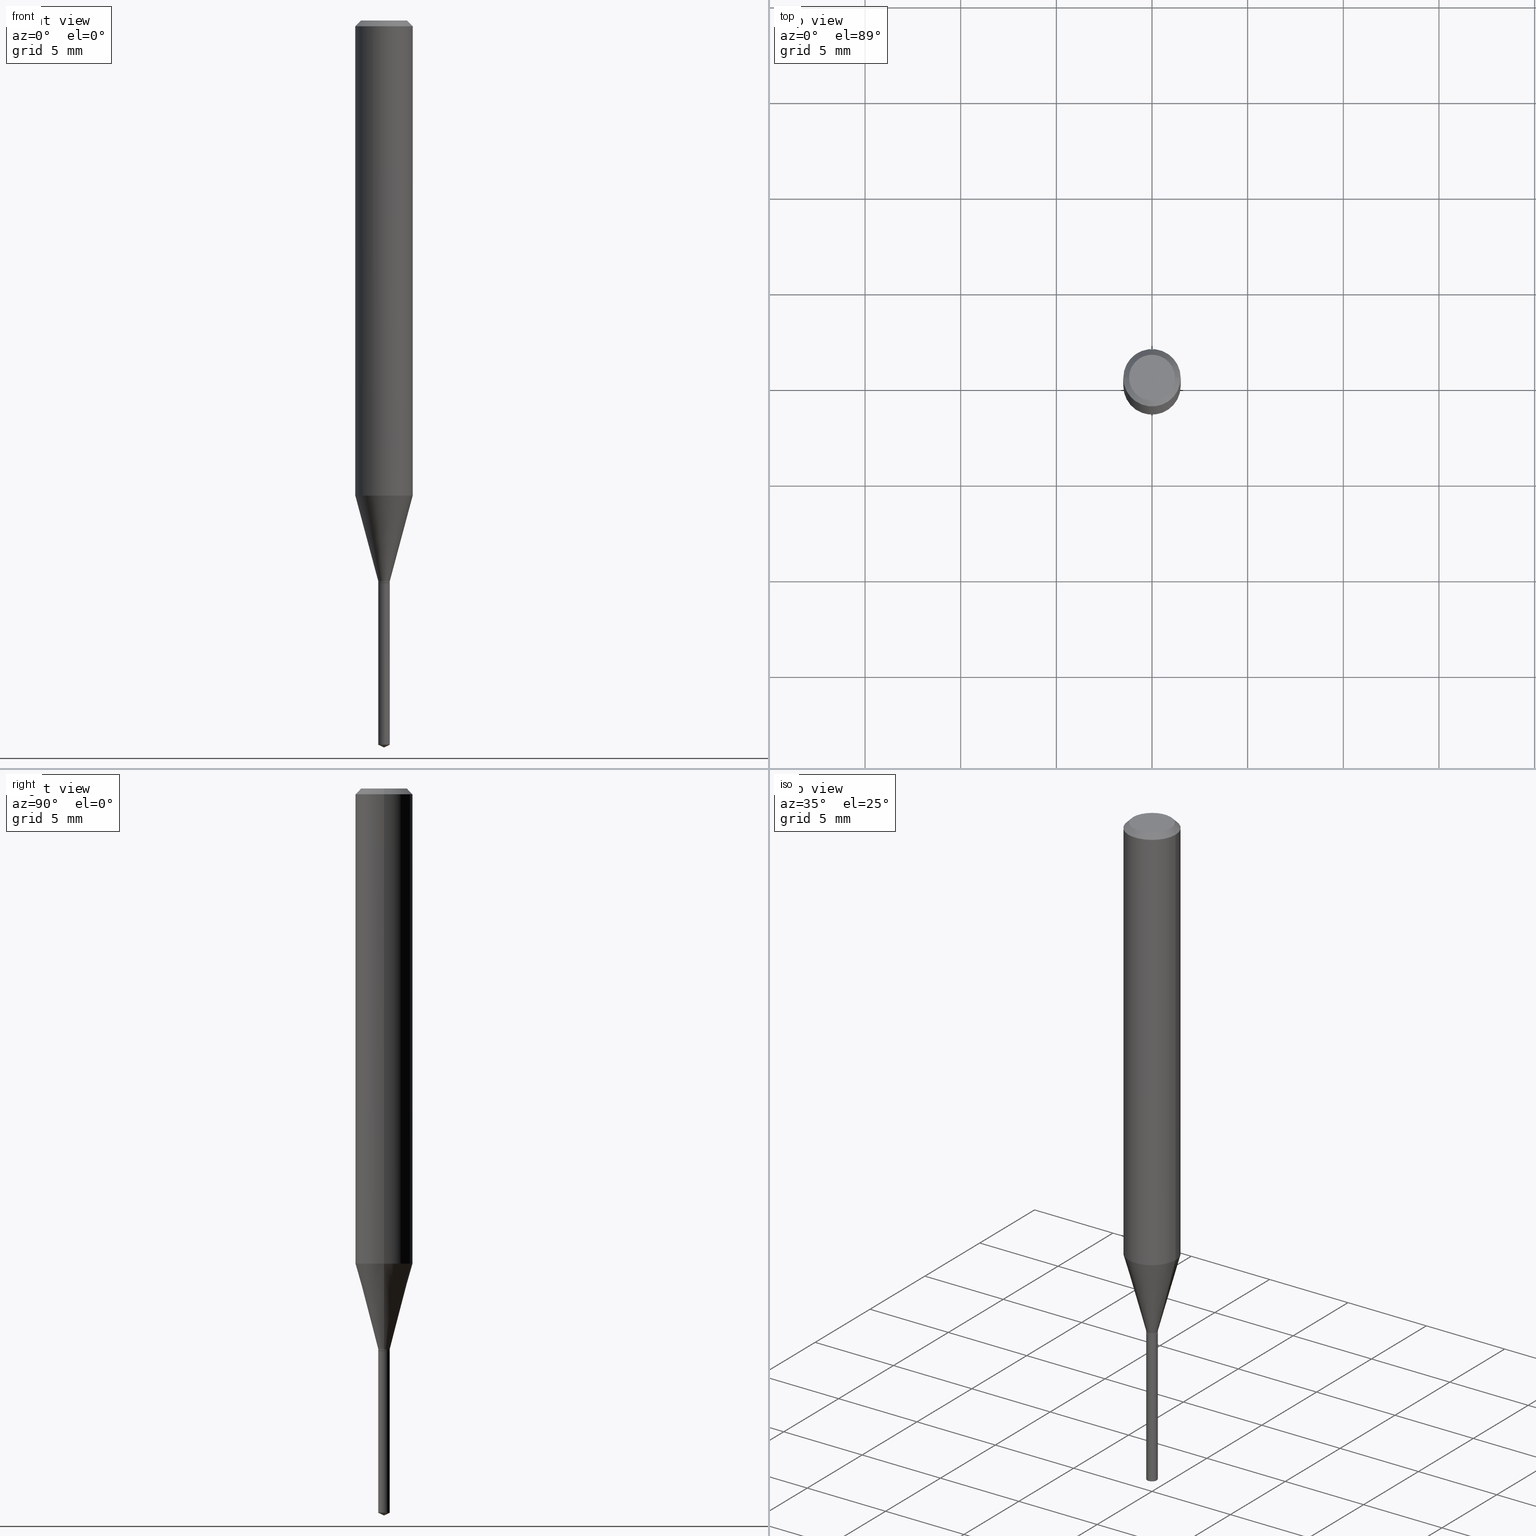
[diagram: canonical four-view strip — front | top / right | iso, engineering-drawing reading convention]
A machine part, canonical four-view strip (front | top / right | iso — engineering-drawing reading convention). The complete STEP part file that produces these views, byte-faithful:
ISO-10303-21;
HEADER;
FILE_DESCRIPTION (( 'STEP AP203' ),
    '1' );
FILE_NAME ('07779.STEP',
    '2024-04-24T02:51:17',
    ( '' ),
    ( '' ),
    'SwSTEP 2.0',
    'SolidWorks 2023',
    '' );
FILE_SCHEMA (( 'CONFIG_CONTROL_DESIGN' ));
ENDSEC;

DATA;
#1 = CYLINDRICAL_SURFACE ( 'NONE', #181, 0.05905000000000006771 ) ;
#2 = ORIENTED_EDGE ( 'NONE', *, *, #268, .F. ) ;
#3 = CLOSED_SHELL ( 'NONE', ( #359, #219, #134, #178, #482 ) ) ;
#4 = CARTESIAN_POINT ( 'NONE',  ( 0.05904999999999999832, -4.463468013801466955E-16, -0.01181000000000006871 ) ) ;
#5 = ORIENTED_EDGE ( 'NONE', *, *, #231, .T. ) ;
#6 = CARTESIAN_POINT ( 'NONE',  ( -0.01180000000000000146, -3.950562644213562832E-15, -1.156999999999999806 ) ) ;
#7 = DIRECTION ( 'NONE',  ( 2.445468806185136597E-29, -3.491481338843145583E-15, -1.000000000000000000 ) ) ;
#8 = EDGE_LOOP ( 'NONE', ( #2, #287, #109, #311 ) ) ;
#9 = ORIENTED_EDGE ( 'NONE', *, *, #371, .T. ) ;
#10 = DIRECTION ( 'NONE',  ( 1.000000000000000000, -6.982962677686254878E-15, 0.000000000000000000 ) ) ;
#11 = ORIENTED_EDGE ( 'NONE', *, *, #15, .T. ) ;
#12 =( NAMED_UNIT ( * ) PLANE_ANGLE_UNIT ( ) SI_UNIT ( $, .RADIAN. ) );
#13 = DIRECTION ( 'NONE',  ( 1.000000000000000000, -6.982962677686267499E-15, 4.876176775795935793E-29 ) ) ;
#14 = LINE ( 'NONE', #55, #274 ) ;
#15 = EDGE_CURVE ( 'NONE', #265, #298, #51, .T. ) ;
#16 = ORIENTED_EDGE ( 'NONE', *, *, #422, .T. ) ;
#17 = DIRECTION ( 'NONE',  ( -6.982962677686265133E-15, -1.000000000000000000, 0.000000000000000000 ) ) ;
#18 = CIRCLE ( 'NONE', #379, 0.01180000000000000146 ) ;
#19 = AXIS2_PLACEMENT_3D ( 'NONE', #153, #116, #10 ) ;
#20 = APPLICATION_PROTOCOL_DEFINITION ( 'international standard', 'config_control_design', 1994, #318 ) ;
#21 = ORIENTED_EDGE ( 'NONE', *, *, #144, .T. ) ;
#22 = UNCERTAINTY_MEASURE_WITH_UNIT (LENGTH_MEASURE( 1.000000000000000082E-05 ), #126, 'distance_accuracy_value', 'NONE');
#23 = PERSON_AND_ORGANIZATION_ROLE ( 'creator' ) ;
#24 = CARTESIAN_POINT ( 'NONE',  ( 0.000000000000000000, 0.000000000000000000, 0.000000000000000000 ) ) ;
#25 = FACE_OUTER_BOUND ( 'NONE', #356, .T. ) ;
#26 = CIRCLE ( 'NONE', #462, 0.01180000000000000146 ) ;
#27 = ORGANIZATION ( 'UNSPECIFIED', 'UNSPECIFIED', '' ) ;
#28 = PERSON_AND_ORGANIZATION ( #216, #27 ) ;
#29 = DIRECTION ( 'NONE',  ( -6.982962677686266711E-15, -1.000000000000000000, 3.520397390770449137E-15 ) ) ;
#30 = ORIENTED_EDGE ( 'NONE', *, *, #168, .T. ) ;
#31 = DIRECTION ( 'NONE',  ( -2.445468806185136597E-29, 3.491481338843145583E-15, 1.000000000000000000 ) ) ;
#32 = EDGE_LOOP ( 'NONE', ( #455, #136, #418, #248 ) ) ;
#33 = DIRECTION ( 'NONE',  ( -2.445457056059012515E-29, 3.491498165692530705E-15, 1.000000000000000000 ) ) ;
#34 = AXIS2_PLACEMENT_3D ( 'NONE', #451, #217, #220 ) ;
#35 = VECTOR ( 'NONE', #230, 39.37007874015748143 ) ;
#36 = PERSON_AND_ORGANIZATION ( #216, #27 ) ;
#37 = ADVANCED_FACE ( 'NONE', ( #393 ), #273, .T. ) ;
#38 = DIRECTION ( 'NONE',  ( -2.445468806185136597E-29, 3.491481338843145583E-15, 1.000000000000000000 ) ) ;
#39 = CARTESIAN_POINT ( 'NONE',  ( 0.000000000000000000, 0.000000000000000000, 0.000000000000000000 ) ) ;
#40 = DIRECTION ( 'NONE',  ( -1.000000000000000000, 6.982962677686266711E-15, 0.000000000000000000 ) ) ;
#41 = EDGE_LOOP ( 'NONE', ( #478, #291, #190, #244 ) ) ;
#42 = CONICAL_SURFACE ( 'NONE', #446, 84.42940631927444883, 1.134464013796316451 ) ;
#43 = CONICAL_SURFACE ( 'NONE', #166, 0.01180000000000000146, 0.2617993877991500740 ) ;
#44 = CARTESIAN_POINT ( 'NONE',  ( 0.04724000000000000421, -3.852183633974369345E-16, -3.380025165621689721E-19 ) ) ;
#45 = ORIENTED_EDGE ( 'NONE', *, *, #271, .F. ) ;
#46 = CARTESIAN_POINT ( 'NONE',  ( 2.830630143159295633E-29, -4.041389649710940900E-15, -1.157499999999999973 ) ) ;
#47 = ORIENTED_EDGE ( 'NONE', *, *, #375, .T. ) ;
#48 = EDGE_CURVE ( 'NONE', #260, #80, #315, .T. ) ;
#49 = LINE ( 'NONE', #154, #213 ) ;
#50 = CARTESIAN_POINT ( 'NONE',  ( 2.830630143159295633E-29, -4.041389649710940900E-15, -1.157499999999999973 ) ) ;
#51 = CIRCLE ( 'NONE', #149, 0.04724000000000000421 ) ;
#52 = CC_DESIGN_APPROVAL ( #341, ( #88 ) ) ;
#53 = LINE ( 'NONE', #434, #397 ) ;
#54 = DIRECTION ( 'NONE',  ( 1.000000000000000000, -6.982962677686258033E-15, 0.000000000000000000 ) ) ;
#55 = CARTESIAN_POINT ( 'NONE',  ( 8.384404281972012037E-17, 0.01179999999999595782, -1.157499999999999973 ) ) ;
#56 = DIRECTION ( 'NONE',  ( 2.445457056059012235E-29, -3.491498165692530705E-15, -1.000000000000000000 ) ) ;
#57 = ORIENTED_EDGE ( 'NONE', *, *, #363, .T. ) ;
#58 = AXIS2_PLACEMENT_3D ( 'NONE', #199, #353, #13 ) ;
#59 = CARTESIAN_POINT ( 'NONE',  ( 3.658675741637279389E-29, -5.223591451536267840E-15, -1.496099999999999985 ) ) ;
#60 = VECTOR ( 'NONE', #79, 39.37007874015748143 ) ;
#61 = APPROVAL_DATE_TIME ( #169, #305 ) ;
#62 = DIRECTION ( 'NONE',  ( -2.445457056059012515E-29, 3.491498165692530705E-15, 1.000000000000000000 ) ) ;
#63 = PERSON_AND_ORGANIZATION_ROLE ( 'design_supplier' ) ;
#64 = DIRECTION ( 'NONE',  ( 1.000000000000000000, -6.982962677686258033E-15, 0.000000000000000000 ) ) ;
#65 = CARTESIAN_POINT ( 'NONE',  ( -0.05904999999999999832, 3.711095515056362547E-16, -0.01181000000000006871 ) ) ;
#66 = CONICAL_SURFACE ( 'NONE', #297, 0.01130000000000000102, 0.7853981633974119747 ) ;
#67 = COORDINATED_UNIVERSAL_TIME_OFFSET ( 5, 0, .BEHIND. ) ;
#68 = CARTESIAN_POINT ( 'NONE',  ( 2.829407408756202832E-29, -4.039643909041518608E-15, -1.156999999999999806 ) ) ;
#69 = EDGE_CURVE ( 'NONE', #80, #203, #14, .T. ) ;
#70 = CYLINDRICAL_SURFACE ( 'NONE', #357, 0.01180000000000000146 ) ;
#71 = FACE_OUTER_BOUND ( 'NONE', #8, .T. ) ;
#72 = LOCAL_TIME ( 22, 51, 17.00000000000000000, #372 ) ;
#73 = LINE ( 'NONE', #460, #135 ) ;
#74 = DIRECTION ( 'NONE',  ( -2.445468806185136597E-29, 3.491481338843145583E-15, 1.000000000000000000 ) ) ;
#75 = DIRECTION ( 'NONE',  ( -6.982962677686265133E-15, -1.000000000000000000, 0.000000000000000000 ) ) ;
#76 = EDGE_CURVE ( 'NONE', #365, #388, #338, .T. ) ;
#77 = VERTEX_POINT ( 'NONE', #172 ) ;
#78 = AXIS2_PLACEMENT_3D ( 'NONE', #68, #31, #143 ) ;
#79 = DIRECTION ( 'NONE',  ( -2.445457056059012515E-29, 3.491498165692530705E-15, 1.000000000000000000 ) ) ;
#80 = VERTEX_POINT ( 'NONE', #246 ) ;
#81 = EDGE_CURVE ( 'NONE', #346, #80, #133, .T. ) ;
#82 = CARTESIAN_POINT ( 'NONE',  ( -0.01130000000000000102, -3.958449093395937755E-15, -1.157499999999999973 ) ) ;
#83 = ADVANCED_FACE ( 'NONE', ( #314 ), #241, .F. ) ;
#84 = PERSON_AND_ORGANIZATION ( #216, #27 ) ;
#85 = EDGE_CURVE ( 'NONE', #417, #388, #89, .T. ) ;
#86 = DIRECTION ( 'NONE',  ( 0.2588190451025213501, 1.565188264969621968E-15, 0.9659258262890682012 ) ) ;
#87 = AXIS2_PLACEMENT_3D ( 'NONE', #285, #448, #333 ) ;
#88 = PRODUCT_DEFINITION_FORMATION_WITH_SPECIFIED_SOURCE ( 'ANY', '', #323, .NOT_KNOWN. ) ;
#89 = LINE ( 'NONE', #280, #107 ) ;
#90 = FACE_OUTER_BOUND ( 'NONE', #227, .T. ) ;
#91 = PERSON_AND_ORGANIZATION ( #216, #27 ) ;
#92 = DIRECTION ( 'NONE',  ( -2.445468806185136877E-29, 3.491481338843145188E-15, 1.000000000000000000 ) ) ;
#93 = APPROVAL_ROLE ( '' ) ;
#94 = AXIS2_PLACEMENT_3D ( 'NONE', #409, #185, #177 ) ;
#95 = ORIENTED_EDGE ( 'NONE', *, *, #281, .F. ) ;
#96 = APPROVAL_ROLE ( '' ) ;
#97 = DIRECTION ( 'NONE',  ( -2.445457056059012515E-29, 3.491498165692530705E-15, 1.000000000000000000 ) ) ;
#98 = CALENDAR_DATE ( 2024, 23, 4 ) ;
#99 = CARTESIAN_POINT ( 'NONE',  ( 8.265746106709734507E-48, -1.180129479067563789E-33, -3.380025165646692144E-19 ) ) ;
#100 = ORIENTED_EDGE ( 'NONE', *, *, #105, .T. ) ;
#101 = CARTESIAN_POINT ( 'NONE',  ( -0.01130000000000000102, -3.961098320570048956E-15, -1.157499999999999973 ) ) ;
#102 = AXIS2_PLACEMENT_3D ( 'NONE', #24, #131, #164 ) ;
#103 = DIRECTION ( 'NONE',  ( -6.982962677686265133E-15, -1.000000000000000000, 0.000000000000000000 ) ) ;
#104 = DIRECTION ( 'NONE',  ( 1.000000000000000000, -6.982962677686258033E-15, 0.000000000000000000 ) ) ;
#105 = EDGE_CURVE ( 'NONE', #155, #252, #53, .T. ) ;
#106 = CARTESIAN_POINT ( 'NONE',  ( 0.01180000000000000146, -4.122042868638216732E-15, -1.156999999999999806 ) ) ;
#107 = VECTOR ( 'NONE', #236, 39.37007874015748143 ) ;
#108 = CIRCLE ( 'NONE', #174, 0.01180000000000000146 ) ;
#109 = ORIENTED_EDGE ( 'NONE', *, *, #449, .T. ) ;
#110 = FACE_OUTER_BOUND ( 'NONE', #267, .T. ) ;
#111 = ORIENTED_EDGE ( 'NONE', *, *, #425, .T. ) ;
#112 = EDGE_CURVE ( 'NONE', #309, #214, #125, .T. ) ;
#113 = LINE ( 'NONE', #119, #332 ) ;
#114 = EDGE_LOOP ( 'NONE', ( #303, #420, #467, #435 ) ) ;
#115 = ORIENTED_EDGE ( 'NONE', *, *, #194, .T. ) ;
#116 = DIRECTION ( 'NONE',  ( -2.445468806185136597E-29, 3.491481338843145583E-15, 1.000000000000000000 ) ) ;
#117 = EDGE_LOOP ( 'NONE', ( #484, #459, #390, #233 ) ) ;
#118 = CIRCLE ( 'NONE', #34, 0.05905000000000013016 ) ;
#119 = CARTESIAN_POINT ( 'NONE',  ( 0.05905000000000006771, -4.123439461173745257E-16, 2.879382386107503723E-30 ) ) ;
#120 = PERSON_AND_ORGANIZATION ( #216, #27 ) ;
#121 = ADVANCED_FACE ( 'NONE', ( #399 ), #207, .T. ) ;
#122 = MANIFOLD_SOLID_BREP ( 'Body-Move/Copy2[1]', #3 ) ;
#123 = ORIENTED_EDGE ( 'NONE', *, *, #425, .F. ) ;
#124 = APPROVAL_DATE_TIME ( #426, #341 ) ;
#125 = LINE ( 'NONE', #470, #436 ) ;
#126 =( CONVERSION_BASED_UNIT ( 'INCH', #202 ) LENGTH_UNIT ( ) NAMED_UNIT ( #438 ) );
#127 = CIRCLE ( 'NONE', #404, 0.05905000000000013016 ) ;
#128 = APPROVAL_PERSON_ORGANIZATION ( #277, #305, #163 ) ;
#129 = ORIENTED_EDGE ( 'NONE', *, *, #375, .F. ) ;
#130 = PERSON_AND_ORGANIZATION ( #216, #27 ) ;
#131 = DIRECTION ( 'NONE',  ( -2.445468806185136597E-29, 3.491481338843145583E-15, 1.000000000000000000 ) ) ;
#132 = DATE_TIME_ROLE ( 'creation_date' ) ;
#133 = LINE ( 'NONE', #59, #479 ) ;
#134 = ADVANCED_FACE ( 'NONE', ( #90 ), #324, .T. ) ;
#135 = VECTOR ( 'NONE', #413, 39.37007874015747433 ) ;
#136 = ORIENTED_EDGE ( 'NONE', *, *, #139, .T. ) ;
#137 = CONICAL_SURFACE ( 'NONE', #326, 0.05904999999999999832, 0.7853981633974452814 ) ;
#138 = DIRECTION ( 'NONE',  ( 1.000000000000000000, -6.982962677686266711E-15, 4.876185090822587894E-29 ) ) ;
#139 = EDGE_CURVE ( 'NONE', #417, #77, #127, .T. ) ;
#140 = DIRECTION ( 'NONE',  ( 1.000000000000000000, -6.982962677686258033E-15, 0.000000000000000000 ) ) ;
#141 = EDGE_CURVE ( 'NONE', #312, #203, #26, .T. ) ;
#142 = CARTESIAN_POINT ( 'NONE',  ( 2.829407408756202832E-29, -4.039643909041518608E-15, -1.156999999999999806 ) ) ;
#143 = DIRECTION ( 'NONE',  ( 1.000000000000000000, -6.982962677686258033E-15, 0.000000000000000000 ) ) ;
#144 = EDGE_CURVE ( 'NONE', #77, #417, #118, .T. ) ;
#145 = DIRECTION ( 'NONE',  ( -2.445457056059012515E-29, 3.491498165692530705E-15, 1.000000000000000000 ) ) ;
#146 = DESIGN_CONTEXT ( 'detailed design', #318, 'design' ) ;
#147 = EDGE_CURVE ( 'NONE', #214, #252, #225, .T. ) ;
#148 = CARTESIAN_POINT ( 'NONE',  ( 2.830630143159295633E-29, -4.041389649710940900E-15, -1.157499999999999973 ) ) ;
#149 = AXIS2_PLACEMENT_3D ( 'NONE', #432, #475, #430 ) ;
#150 = EDGE_LOOP ( 'NONE', ( #123, #457, #5, #196 ) ) ;
#151 = DIRECTION ( 'NONE',  ( 0.7071067811865453523, -7.319954787623248157E-15, -0.7071067811865496822 ) ) ;
#152 = EDGE_CURVE ( 'NONE', #298, #265, #386, .T. ) ;
#153 = CARTESIAN_POINT ( 'NONE',  ( 2.830630143159295633E-29, -4.041389649710940900E-15, -1.157499999999999973 ) ) ;
#154 = CARTESIAN_POINT ( 'NONE',  ( 3.658648301569888039E-29, -5.223630405692593810E-15, -1.496099999999999985 ) ) ;
#155 = VERTEX_POINT ( 'NONE', #106 ) ;
#156 = AXIS2_PLACEMENT_3D ( 'NONE', #485, #373, #490 ) ;
#157 = CIRCLE ( 'NONE', #349, 0.01130000000000000102 ) ;
#158 = FACE_OUTER_BOUND ( 'NONE', #162, .T. ) ;
#159 = VERTEX_POINT ( 'NONE', #370 ) ;
#160 = ADVANCED_FACE ( 'NONE', ( #247 ), #369, .T. ) ;
#161 = ORIENTED_EDGE ( 'NONE', *, *, #69, .F. ) ;
#162 = EDGE_LOOP ( 'NONE', ( #257, #111, #391, #201 ) ) ;
#163 = APPROVAL_ROLE ( '' ) ;
#164 = DIRECTION ( 'NONE',  ( 1.000000000000000000, -6.982962677686267499E-15, 4.876176775795935793E-29 ) ) ;
#165 = AXIS2_PLACEMENT_3D ( 'NONE', #209, #170, #29 ) ;
#166 = AXIS2_PLACEMENT_3D ( 'NONE', #313, #237, #54 ) ;
#167 = CARTESIAN_POINT ( 'NONE',  ( 2.888098660104663328E-31, -4.123439461173779030E-17, -0.01181000000000006871 ) ) ;
#168 = EDGE_CURVE ( 'NONE', #427, #309, #294, .T. ) ;
#169 = DATE_AND_TIME ( #321, #360 ) ;
#170 = DIRECTION ( 'NONE',  ( -2.445457056059012515E-29, 3.491498165692530705E-15, 1.000000000000000000 ) ) ;
#171 = CALENDAR_DATE ( 2024, 23, 4 ) ;
#172 = CARTESIAN_POINT ( 'NONE',  ( 0.05905000000000011628, -3.825827684443467023E-15, -0.9776605993423704843 ) ) ;
#173 = FACE_OUTER_BOUND ( 'NONE', #342, .T. ) ;
#174 = AXIS2_PLACEMENT_3D ( 'NONE', #228, #381, #75 ) ;
#175 = DIRECTION ( 'NONE',  ( -6.982962677686265133E-15, -1.000000000000000000, 0.000000000000000000 ) ) ;
#176 = EDGE_LOOP ( 'NONE', ( #129, #423 ) ) ;
#177 = DIRECTION ( 'NONE',  ( 1.000000000000000000, -6.982962677686266711E-15, 4.876176775795936353E-29 ) ) ;
#178 = ADVANCED_FACE ( 'NONE', ( #334 ), #70, .T. ) ;
#179 = PERSON_AND_ORGANIZATION ( #216, #27 ) ;
#180 = CARTESIAN_POINT ( 'NONE',  ( 2.822071002337647144E-29, -4.029169465024989587E-15, -1.153999999999999915 ) ) ;
#181 = AXIS2_PLACEMENT_3D ( 'NONE', #39, #74, #424 ) ;
#182 = CONICAL_SURFACE ( 'NONE', #412, 0.05904999999999999832, 0.7853981633974452814 ) ;
#183 = CALENDAR_DATE ( 2024, 23, 4 ) ;
#184 = EDGE_CURVE ( 'NONE', #388, #365, #296, .T. ) ;
#185 = DIRECTION ( 'NONE',  ( -2.445468806185136597E-29, 3.491481338843145583E-15, 1.000000000000000000 ) ) ;
#186 = DIRECTION ( 'NONE',  ( -6.982962677686265133E-15, -1.000000000000000000, 0.000000000000000000 ) ) ;
#187 = DIRECTION ( 'NONE',  ( -2.445468806185136597E-29, 3.491481338843145583E-15, 1.000000000000000000 ) ) ;
#188 = AXIS2_PLACEMENT_3D ( 'NONE', #99, #38, #138 ) ;
#189 = CONICAL_SURFACE ( 'NONE', #19, 0.01130000000000000102, 0.7853981633974119747 ) ;
#190 = ORIENTED_EDGE ( 'NONE', *, *, #141, .F. ) ;
#191 = DIRECTION ( 'NONE',  ( -2.445468806185136877E-29, 3.491481338843145188E-15, 1.000000000000000000 ) ) ;
#192 = CC_DESIGN_DATE_AND_TIME_ASSIGNMENT ( #235, #132, ( #352 ) ) ;
#193 = DIRECTION ( 'NONE',  ( 1.000000000000000000, -6.982962677686254878E-15, 0.000000000000000000 ) ) ;
#194 = EDGE_CURVE ( 'NONE', #309, #155, #18, .T. ) ;
#195 = FACE_OUTER_BOUND ( 'NONE', #41, .T. ) ;
#196 = ORIENTED_EDGE ( 'NONE', *, *, #184, .T. ) ;
#197 = AXIS2_PLACEMENT_3D ( 'NONE', #50, #56, #198 ) ;
#198 = DIRECTION ( 'NONE',  ( 6.982962677686265922E-15, 1.000000000000000000, -3.491498165692530705E-15 ) ) ;
#199 = CARTESIAN_POINT ( 'NONE',  ( 0.000000000000000000, 0.000000000000000000, 0.000000000000000000 ) ) ;
#200 = ORIENTED_EDGE ( 'NONE', *, *, #371, .F. ) ;
#201 = ORIENTED_EDGE ( 'NONE', *, *, #231, .F. ) ;
#202 = LENGTH_MEASURE_WITH_UNIT ( LENGTH_MEASURE( 0.02539999999999999897 ), #351 );
#203 = VERTEX_POINT ( 'NONE', #210 ) ;
#204 = VECTOR ( 'NONE', #212, 39.37007874015748143 ) ;
#205 = AXIS2_PLACEMENT_3D ( 'NONE', #481, #442, #483 ) ;
#206 = APPROVAL_PERSON_ORGANIZATION ( #120, #341, #93 ) ;
#207 = CYLINDRICAL_SURFACE ( 'NONE', #58, 0.01180000000000000146 ) ;
#208 = FACE_OUTER_BOUND ( 'NONE', #377, .T. ) ;
#209 = CARTESIAN_POINT ( 'NONE',  ( -9.261917495037615480E-28, 1.322369467758159045E-13, 37.87397874015748300 ) ) ;
#210 = CARTESIAN_POINT ( 'NONE',  ( 8.384404281972834178E-17, 0.01179999999999595782, -1.157499999999999973 ) ) ;
#211 = CLOSED_SHELL ( 'NONE', ( #343, #396, #263, #474, #37, #121, #221, #160, #306, #229, #83, #301 ) ) ;
#212 = DIRECTION ( 'NONE',  ( -0.7071067811865453523, 2.468850131082234184E-15, -0.7071067811865496822 ) ) ;
#213 = VECTOR ( 'NONE', #337, 39.37007874015748143 ) ;
#214 = VERTEX_POINT ( 'NONE', #330 ) ;
#215 = DIRECTION ( 'NONE',  ( -2.445468806185136597E-29, 3.491481338843145583E-15, 1.000000000000000000 ) ) ;
#216 = PERSON ( 'UNSPECIFIED', 'UNSPECIFIED', 'UNSPECIFIED', ('UNSPECIFIED'), ('UNSPECIFIED'), ('UNSPECIFIED') ) ;
#217 = DIRECTION ( 'NONE',  ( -2.445468806185136597E-29, 3.491481338843145583E-15, 1.000000000000000000 ) ) ;
#218 = EDGE_CURVE ( 'NONE', #155, #309, #367, .T. ) ;
#219 = ADVANCED_FACE ( 'NONE', ( #173 ), #42, .T. ) ;
#220 = DIRECTION ( 'NONE',  ( 1.000000000000000000, -6.982962677686265133E-15, 0.000000000000000000 ) ) ;
#221 = ADVANCED_FACE ( 'NONE', ( #71 ), #471, .T. ) ;
#222 = CARTESIAN_POINT ( 'NONE',  ( -0.04724000000000000421, 3.504923541997677355E-16, -3.380025165670481712E-19 ) ) ;
#223 = CARTESIAN_POINT ( 'NONE',  ( 2.888098660104663328E-31, -4.123439461173779030E-17, -0.01181000000000006871 ) ) ;
#224 = DIRECTION ( 'NONE',  ( -2.445468806185136597E-29, 3.491481338843145583E-15, 1.000000000000000000 ) ) ;
#225 = CIRCLE ( 'NONE', #242, 0.01180000000000000146 ) ;
#226 = LOCAL_TIME ( 22, 51, 17.00000000000000000, #67 ) ;
#227 = EDGE_LOOP ( 'NONE', ( #477, #358, #200 ) ) ;
#228 = CARTESIAN_POINT ( 'NONE',  ( 3.645205945176309344E-29, -5.204399203083893215E-15, -1.490597569633770991 ) ) ;
#229 = ADVANCED_FACE ( 'NONE', ( #25 ), #327, .F. ) ;
#230 = DIRECTION ( 'NONE',  ( 0.7071067811865218156, -2.468850131081987665E-15, 0.7071067811865732189 ) ) ;
#231 = EDGE_CURVE ( 'NONE', #298, #388, #288, .T. ) ;
#232 = CARTESIAN_POINT ( 'NONE',  ( 0.01180000000000000146, -4.111568424621687711E-15, -1.153999999999999915 ) ) ;
#233 = ORIENTED_EDGE ( 'NONE', *, *, #449, .F. ) ;
#234 = AXIS2_PLACEMENT_3D ( 'NONE', #439, #97, #17 ) ;
#235 = DATE_AND_TIME ( #171, #464 ) ;
#236 = DIRECTION ( 'NONE',  ( -2.445468806185136877E-29, 3.491481338843145188E-15, 1.000000000000000000 ) ) ;
#237 = DIRECTION ( 'NONE',  ( -2.445468806185136597E-29, 3.491481338843145583E-15, 1.000000000000000000 ) ) ;
#238 = EDGE_CURVE ( 'NONE', #252, #214, #282, .T. ) ;
#239 = ORIENTED_EDGE ( 'NONE', *, *, #218, .F. ) ;
#240 = DIRECTION ( 'NONE',  ( 0.000000000000000000, 0.000000000000000000, 1.000000000000000000 ) ) ;
#241 = PLANE ( 'NONE',  #348 ) ;
#242 = AXIS2_PLACEMENT_3D ( 'NONE', #180, #215, #104 ) ;
#243 = CARTESIAN_POINT ( 'NONE',  ( 0.000000000000000000, 0.000000000000000000, 0.000000000000000000 ) ) ;
#244 = ORIENTED_EDGE ( 'NONE', *, *, #363, .F. ) ;
#245 = APPROVAL_STATUS ( 'not_yet_approved' ) ;
#246 = CARTESIAN_POINT ( 'NONE',  ( 8.384404281972826782E-17, 0.01179999999999479555, -1.490597569633770991 ) ) ;
#247 = FACE_OUTER_BOUND ( 'NONE', #32, .T. ) ;
#248 = ORIENTED_EDGE ( 'NONE', *, *, #184, .F. ) ;
#249 = CARTESIAN_POINT ( 'NONE',  ( -8.239895959666149116E-17, -0.01180000000000520563, -1.490597569633770991 ) ) ;
#250 = VECTOR ( 'NONE', #151, 39.37007874015748143 ) ;
#251 = CARTESIAN_POINT ( 'NONE',  ( 2.830630143159295633E-29, -4.041389649710940900E-15, -1.157499999999999973 ) ) ;
#252 = VERTEX_POINT ( 'NONE', #286 ) ;
#253 = APPROVAL_DATE_TIME ( #401, #362 ) ;
#254 = DIRECTION ( 'NONE',  ( 1.000000000000000000, -6.982962677686265133E-15, 0.000000000000000000 ) ) ;
#255 = LINE ( 'NONE', #4, #250 ) ;
#256 = LOCAL_TIME ( 22, 51, 17.00000000000000000, #269 ) ;
#257 = ORIENTED_EDGE ( 'NONE', *, *, #15, .F. ) ;
#258 = CARTESIAN_POINT ( 'NONE',  ( 0.05904999999999999832, -4.535783407291118600E-16, -0.01181000000000006871 ) ) ;
#259 = DIRECTION ( 'NONE',  ( -1.000000000000000000, 6.982962677686266711E-15, 0.000000000000000000 ) ) ;
#260 = VERTEX_POINT ( 'NONE', #249 ) ;
#261 = ORIENTED_EDGE ( 'NONE', *, *, #281, .T. ) ;
#262 = CARTESIAN_POINT ( 'NONE',  ( 2.830630143159295633E-29, -4.041389649710940900E-15, -1.157499999999999973 ) ) ;
#263 = ADVANCED_FACE ( 'NONE', ( #406 ), #1, .T. ) ;
#264 = APPROVAL_PERSON_ORGANIZATION ( #179, #362, #96 ) ;
#265 = VERTEX_POINT ( 'NONE', #44 ) ;
#266 = CARTESIAN_POINT ( 'NONE',  ( 2.830630143159295633E-29, -4.041389649710940900E-15, -1.157499999999999973 ) ) ;
#267 = EDGE_LOOP ( 'NONE', ( #47, #30, #239, #345 ) ) ;
#268 = EDGE_CURVE ( 'NONE', #214, #417, #73, .T. ) ;
#269 = COORDINATED_UNIVERSAL_TIME_OFFSET ( 5, 0, .BEHIND. ) ;
#270 = EDGE_LOOP ( 'NONE', ( #21, #394, #461, #45 ) ) ;
#271 = EDGE_CURVE ( 'NONE', #77, #365, #113, .T. ) ;
#272 = CALENDAR_DATE ( 2024, 23, 4 ) ;
#273 = CYLINDRICAL_SURFACE ( 'NONE', #102, 0.01180000000000000146 ) ;
#274 = VECTOR ( 'NONE', #62, 39.37007874015748143 ) ;
#275 = CC_DESIGN_SECURITY_CLASSIFICATION ( #316, ( #88 ) ) ;
#276 = DIRECTION ( 'NONE',  ( -2.438088387897960049E-29, 3.491481338843145188E-15, 1.000000000000000000 ) ) ;
#277 = PERSON_AND_ORGANIZATION ( #216, #27 ) ;
#278 = DIRECTION ( 'NONE',  ( 1.000000000000000000, -6.982962677686266711E-15, 0.000000000000000000 ) ) ;
#279 = APPROVAL_STATUS ( 'not_yet_approved' ) ;
#280 = CARTESIAN_POINT ( 'NONE',  ( -0.05905000000000006771, 4.195754854663396409E-16, -2.904631170795525045E-30 ) ) ;
#281 = EDGE_CURVE ( 'NONE', #203, #312, #411, .T. ) ;
#282 = CIRCLE ( 'NONE', #486, 0.01180000000000000146 ) ;
#283 = DATE_TIME_ROLE ( 'classification_date' ) ;
#284 = ORIENTED_EDGE ( 'NONE', *, *, #147, .F. ) ;
#285 = CARTESIAN_POINT ( 'NONE',  ( 2.888098660104663328E-31, -4.123439461173779030E-17, -0.01181000000000006871 ) ) ;
#286 = CARTESIAN_POINT ( 'NONE',  ( 0.01180000000000000146, -4.111568424621687711E-15, -1.153999999999999915 ) ) ;
#287 = ORIENTED_EDGE ( 'NONE', *, *, #147, .T. ) ;
#288 = LINE ( 'NONE', #65, #204 ) ;
#289 = ADVANCED_BREP_SHAPE_REPRESENTATION ( '07779', ( #122, #463, #453 ), #447 ) ;
#290 = CC_DESIGN_APPROVAL ( #362, ( #316 ) ) ;
#291 = ORIENTED_EDGE ( 'NONE', *, *, #69, .T. ) ;
#292 = DATE_AND_TIME ( #98, #226 ) ;
#293 = CARTESIAN_POINT ( 'NONE',  ( -9.261917495037615480E-28, 1.322369467758159045E-13, 37.87397874015748300 ) ) ;
#294 = LINE ( 'NONE', #101, #487 ) ;
#295 = DIRECTION ( 'NONE',  ( -2.445457056059012515E-29, 3.491498165692530705E-15, 1.000000000000000000 ) ) ;
#296 = CIRCLE ( 'NONE', #87, 0.05904999999999999832 ) ;
#297 = AXIS2_PLACEMENT_3D ( 'NONE', #456, #454, #344 ) ;
#298 = VERTEX_POINT ( 'NONE', #222 ) ;
#299 = CARTESIAN_POINT ( 'NONE',  ( 0.01130000000000000102, -4.120297127968795228E-15, -1.157499999999999973 ) ) ;
#300 = ORIENTED_EDGE ( 'NONE', *, *, #152, .T. ) ;
#301 = ADVANCED_FACE ( 'NONE', ( #466 ), #66, .T. ) ;
#302 = CARTESIAN_POINT ( 'NONE',  ( -8.239895959666962629E-17, -0.01180000000000404337, -1.157499999999999973 ) ) ;
#303 = ORIENTED_EDGE ( 'NONE', *, *, #218, .T. ) ;
#304 = CARTESIAN_POINT ( 'NONE',  ( -0.05905000000000011628, -2.993908252859751821E-15, -0.9776605993423704843 ) ) ;
#305 = APPROVAL ( #468, 'UNSPECIFIED' ) ;
#306 = ADVANCED_FACE ( 'NONE', ( #340 ), #137, .T. ) ;
#307 = AXIS2_PLACEMENT_3D ( 'NONE', #167, #317, #278 ) ;
#308 = CIRCLE ( 'NONE', #472, 0.01130000000000000102 ) ;
#309 = VERTEX_POINT ( 'NONE', #6 ) ;
#310 = DIRECTION ( 'NONE',  ( 1.000000000000000000, -6.982962677686254878E-15, 0.000000000000000000 ) ) ;
#311 = ORIENTED_EDGE ( 'NONE', *, *, #139, .F. ) ;
#312 = VERTEX_POINT ( 'NONE', #383 ) ;
#313 = CARTESIAN_POINT ( 'NONE',  ( 2.822071002337647144E-29, -4.029169465024989587E-15, -1.153999999999999915 ) ) ;
#314 = FACE_OUTER_BOUND ( 'NONE', #176, .T. ) ;
#315 = CIRCLE ( 'NONE', #234, 0.01180000000000000146 ) ;
#316 = SECURITY_CLASSIFICATION ( '', '', #329 ) ;
#317 = DIRECTION ( 'NONE',  ( -2.445468806185136597E-29, 3.491481338843145583E-15, 1.000000000000000000 ) ) ;
#318 = APPLICATION_CONTEXT ( 'configuration controlled 3d designs of mechanical parts and assemblies' ) ;
#319 = COORDINATED_UNIVERSAL_TIME_OFFSET ( 5, 0, .BEHIND. ) ;
#320 = CARTESIAN_POINT ( 'NONE',  ( 2.830630143159295633E-29, -4.041389649710940900E-15, -1.157499999999999973 ) ) ;
#321 = CALENDAR_DATE ( 2024, 23, 4 ) ;
#322 = ORIENTED_EDGE ( 'NONE', *, *, #168, .F. ) ;
#323 = PRODUCT ( '07779', '07779', '', ( #476 ) ) ;
#324 = CONICAL_SURFACE ( 'NONE', #165, 84.42940631927444883, 1.134464013796316451 ) ;
#325 = PERSON_AND_ORGANIZATION_ROLE ( 'classification_officer' ) ;
#326 = AXIS2_PLACEMENT_3D ( 'NONE', #374, #335, #259 ) ;
#327 = PLANE ( 'NONE',  #205 ) ;
#328 = DIRECTION ( 'NONE',  ( -2.445468806185136597E-29, 3.491481338843145583E-15, 1.000000000000000000 ) ) ;
#329 = SECURITY_CLASSIFICATION_LEVEL ( 'unclassified' ) ;
#330 = CARTESIAN_POINT ( 'NONE',  ( -0.01180000000000000146, -3.950562644213562832E-15, -1.153999999999999915 ) ) ;
#331 = CC_DESIGN_DATE_AND_TIME_ASSIGNMENT ( #292, #283, ( #316 ) ) ;
#332 = VECTOR ( 'NONE', #191, 39.37007874015748143 ) ;
#333 = DIRECTION ( 'NONE',  ( 1.000000000000000000, -6.982962677686266711E-15, 0.000000000000000000 ) ) ;
#334 = FACE_OUTER_BOUND ( 'NONE', #465, .T. ) ;
#335 = DIRECTION ( 'NONE',  ( 2.445468806185136597E-29, -3.491481338843145583E-15, -1.000000000000000000 ) ) ;
#336 = CC_DESIGN_PERSON_AND_ORGANIZATION_ASSIGNMENT ( #91, #23, ( #352 ) ) ;
#337 = DIRECTION ( 'NONE',  ( -6.328713451373376478E-15, -0.9063077870366493816, 0.4226182617407006070 ) ) ;
#338 = CIRCLE ( 'NONE', #307, 0.05904999999999999832 ) ;
#339 = ORIENTED_EDGE ( 'NONE', *, *, #112, .F. ) ;
#340 = FACE_OUTER_BOUND ( 'NONE', #150, .T. ) ;
#341 = APPROVAL ( #279, 'UNSPECIFIED' ) ;
#342 = EDGE_LOOP ( 'NONE', ( #407, #380, #382 ) ) ;
#343 = ADVANCED_FACE ( 'NONE', ( #110 ), #189, .T. ) ;
#344 = DIRECTION ( 'NONE',  ( 1.000000000000000000, -6.982962677686254878E-15, 0.000000000000000000 ) ) ;
#345 = ORIENTED_EDGE ( 'NONE', *, *, #437, .F. ) ;
#346 = VERTEX_POINT ( 'NONE', #416 ) ;
#347 = LINE ( 'NONE', #302, #60 ) ;
#348 = AXIS2_PLACEMENT_3D ( 'NONE', #320, #276, #469 ) ;
#349 = AXIS2_PLACEMENT_3D ( 'NONE', #46, #224, #193 ) ;
#350 = ORIENTED_EDGE ( 'NONE', *, *, #437, .T. ) ;
#351 =( LENGTH_UNIT ( ) NAMED_UNIT ( * ) SI_UNIT ( $, .METRE. ) );
#352 = PRODUCT_DEFINITION ( 'UNKNOWN', '', #88, #146 ) ;
#353 = DIRECTION ( 'NONE',  ( -2.445468806185136597E-29, 3.491481338843145583E-15, 1.000000000000000000 ) ) ;
#354 = DIRECTION ( 'NONE',  ( 6.439704144417031142E-15, 0.9063077870366522681, 0.4226182617406943343 ) ) ;
#355 = CC_DESIGN_PERSON_AND_ORGANIZATION_ASSIGNMENT ( #36, #63, ( #88 ) ) ;
#356 = EDGE_LOOP ( 'NONE', ( #300, #11 ) ) ;
#357 = AXIS2_PLACEMENT_3D ( 'NONE', #408, #33, #175 ) ;
#358 = ORIENTED_EDGE ( 'NONE', *, *, #402, .T. ) ;
#359 = ADVANCED_FACE ( 'NONE', ( #195 ), #419, .T. ) ;
#360 = LOCAL_TIME ( 22, 51, 17.00000000000000000, #433 ) ;
#361 = DIRECTION ( 'NONE',  ( -2.445468806185136877E-29, 3.491481338843145188E-15, 1.000000000000000000 ) ) ;
#362 = APPROVAL ( #245, 'UNSPECIFIED' ) ;
#363 = EDGE_CURVE ( 'NONE', #260, #312, #347, .T. ) ;
#364 = PERSON_AND_ORGANIZATION_ROLE ( 'design_owner' ) ;
#365 = VERTEX_POINT ( 'NONE', #258 ) ;
#366 = CARTESIAN_POINT ( 'NONE',  ( 2.390838498728031811E-29, -3.413483738326091708E-15, -0.9776605993423704843 ) ) ;
#367 = CIRCLE ( 'NONE', #78, 0.01180000000000000146 ) ;
#368 = CARTESIAN_POINT ( 'NONE',  ( 2.822071002337647144E-29, -4.029169465024989587E-15, -1.153999999999999915 ) ) ;
#369 = CYLINDRICAL_SURFACE ( 'NONE', #94, 0.05905000000000006771 ) ;
#370 = CARTESIAN_POINT ( 'NONE',  ( 0.01130000000000000102, -4.120297127968795228E-15, -1.157499999999999973 ) ) ;
#371 = EDGE_CURVE ( 'NONE', #80, #260, #108, .T. ) ;
#372 = COORDINATED_UNIVERSAL_TIME_OFFSET ( 5, 0, .BEHIND. ) ;
#373 = DIRECTION ( 'NONE',  ( -2.445468806185136597E-29, 3.491481338843145583E-15, 1.000000000000000000 ) ) ;
#374 = CARTESIAN_POINT ( 'NONE',  ( 2.888098660104663328E-31, -4.123439461173779030E-17, -0.01181000000000006871 ) ) ;
#375 = EDGE_CURVE ( 'NONE', #159, #427, #157, .T. ) ;
#376 = DIRECTION ( 'NONE',  ( -6.982962677686265133E-15, -1.000000000000000000, 0.000000000000000000 ) ) ;
#377 = EDGE_LOOP ( 'NONE', ( #444, #261 ) ) ;
#378 = LINE ( 'NONE', #299, #35 ) ;
#379 = AXIS2_PLACEMENT_3D ( 'NONE', #142, #400, #64 ) ;
#380 = ORIENTED_EDGE ( 'NONE', *, *, #81, .T. ) ;
#381 = DIRECTION ( 'NONE',  ( -2.445457056059012515E-29, 3.491498165692530705E-15, 1.000000000000000000 ) ) ;
#382 = ORIENTED_EDGE ( 'NONE', *, *, #48, .F. ) ;
#383 = CARTESIAN_POINT ( 'NONE',  ( -8.239895959666962629E-17, -0.01180000000000404337, -1.157499999999999973 ) ) ;
#384 = EDGE_LOOP ( 'NONE', ( #322, #16, #350, #410 ) ) ;
#385 = PLANE ( 'NONE',  #197 ) ;
#386 = CIRCLE ( 'NONE', #188, 0.04724000000000000421 ) ;
#387 = AXIS2_PLACEMENT_3D ( 'NONE', #148, #295, #186 ) ;
#388 = VERTEX_POINT ( 'NONE', #414 ) ;
#389 = PERSON_AND_ORGANIZATION_ROLE ( 'creator' ) ;
#390 = ORIENTED_EDGE ( 'NONE', *, *, #144, .F. ) ;
#391 = ORIENTED_EDGE ( 'NONE', *, *, #76, .T. ) ;
#392 = FACE_OUTER_BOUND ( 'NONE', #117, .T. ) ;
#393 = FACE_OUTER_BOUND ( 'NONE', #114, .T. ) ;
#394 = ORIENTED_EDGE ( 'NONE', *, *, #85, .T. ) ;
#395 = CC_DESIGN_PERSON_AND_ORGANIZATION_ASSIGNMENT ( #28, #325, ( #316 ) ) ;
#396 = ADVANCED_FACE ( 'NONE', ( #158 ), #182, .T. ) ;
#397 = VECTOR ( 'NONE', #92, 39.37007874015748143 ) ;
#398 = APPLICATION_PROTOCOL_DEFINITION ( 'international standard', 'config_control_design', 1994, #415 ) ;
#399 = FACE_OUTER_BOUND ( 'NONE', #428, .T. ) ;
#400 = DIRECTION ( 'NONE',  ( -2.445468806185136597E-29, 3.491481338843145583E-15, 1.000000000000000000 ) ) ;
#401 = DATE_AND_TIME ( #183, #72 ) ;
#402 = EDGE_CURVE ( 'NONE', #346, #260, #49, .T. ) ;
#403 = DIRECTION ( 'NONE',  ( -6.982962677686266711E-15, -1.000000000000000000, 3.520397390770449137E-15 ) ) ;
#404 = AXIS2_PLACEMENT_3D ( 'NONE', #366, #489, #254 ) ;
#405 = PRODUCT_RELATED_PRODUCT_CATEGORY ( 'detail', '', ( #323 ) ) ;
#406 = FACE_OUTER_BOUND ( 'NONE', #270, .T. ) ;
#407 = ORIENTED_EDGE ( 'NONE', *, *, #402, .F. ) ;
#408 = CARTESIAN_POINT ( 'NONE',  ( 2.830630143159295633E-29, -4.041389649710940900E-15, -1.157499999999999973 ) ) ;
#409 = CARTESIAN_POINT ( 'NONE',  ( 0.000000000000000000, 0.000000000000000000, 0.000000000000000000 ) ) ;
#410 = ORIENTED_EDGE ( 'NONE', *, *, #194, .F. ) ;
#411 = CIRCLE ( 'NONE', #387, 0.01180000000000000146 ) ;
#412 = AXIS2_PLACEMENT_3D ( 'NONE', #223, #7, #40 ) ;
#413 = DIRECTION ( 'NONE',  ( -0.2588190451025213501, 5.211531920934551042E-15, 0.9659258262890682012 ) ) ;
#414 = CARTESIAN_POINT ( 'NONE',  ( -0.05904999999999999832, -1.307783581002574437E-15, -0.01181000000000006871 ) ) ;
#415 = APPLICATION_CONTEXT ( 'configuration controlled 3d designs of mechanical parts and assemblies' ) ;
#416 = CARTESIAN_POINT ( 'NONE',  ( 3.658648301569888039E-29, -5.223630405692595388E-15, -1.496099999999999985 ) ) ;
#417 = VERTEX_POINT ( 'NONE', #304 ) ;
#418 = ORIENTED_EDGE ( 'NONE', *, *, #271, .T. ) ;
#419 = CYLINDRICAL_SURFACE ( 'NONE', #421, 0.01180000000000000146 ) ;
#420 = ORIENTED_EDGE ( 'NONE', *, *, #112, .T. ) ;
#421 = AXIS2_PLACEMENT_3D ( 'NONE', #262, #458, #376 ) ;
#422 = EDGE_CURVE ( 'NONE', #427, #159, #308, .T. ) ;
#423 = ORIENTED_EDGE ( 'NONE', *, *, #422, .F. ) ;
#424 = DIRECTION ( 'NONE',  ( 1.000000000000000000, -6.982962677686266711E-15, 4.876176775795936353E-29 ) ) ;
#425 = EDGE_CURVE ( 'NONE', #265, #365, #255, .T. ) ;
#426 = DATE_AND_TIME ( #272, #256 ) ;
#427 = VERTEX_POINT ( 'NONE', #82 ) ;
#428 = EDGE_LOOP ( 'NONE', ( #339, #115, #100, #284 ) ) ;
#429 = LINE ( 'NONE', #232, #488 ) ;
#430 = DIRECTION ( 'NONE',  ( 1.000000000000000000, -6.982962677686266711E-15, 4.876185090822587894E-29 ) ) ;
#431 =( NAMED_UNIT ( * ) SI_UNIT ( $, .STERADIAN. ) SOLID_ANGLE_UNIT ( ) );
#432 = CARTESIAN_POINT ( 'NONE',  ( 8.265746106709734507E-48, -1.180129479067563789E-33, -3.380025165646692144E-19 ) ) ;
#433 = COORDINATED_UNIVERSAL_TIME_OFFSET ( 5, 0, .BEHIND. ) ;
#434 = CARTESIAN_POINT ( 'NONE',  ( 0.01180000000000000146, -8.239895959669796365E-17, 5.753888595439204775E-31 ) ) ;
#435 = ORIENTED_EDGE ( 'NONE', *, *, #105, .F. ) ;
#436 = VECTOR ( 'NONE', #361, 39.37007874015748143 ) ;
#437 = EDGE_CURVE ( 'NONE', #159, #155, #378, .T. ) ;
#438 = DIMENSIONAL_EXPONENTS ( 1.000000000000000000, 0.000000000000000000, 0.000000000000000000, 0.000000000000000000, 0.000000000000000000, 0.000000000000000000, 0.000000000000000000 ) ;
#439 = CARTESIAN_POINT ( 'NONE',  ( 3.645205945176309344E-29, -5.204399203083893215E-15, -1.490597569633770991 ) ) ;
#440 = CC_DESIGN_PERSON_AND_ORGANIZATION_ASSIGNMENT ( #130, #364, ( #323 ) ) ;
#441 = SHAPE_DEFINITION_REPRESENTATION ( #452, #289 ) ;
#442 = DIRECTION ( 'NONE',  ( 2.438088387897960049E-29, -3.491481338843145188E-15, -1.000000000000000000 ) ) ;
#443 = CC_DESIGN_PERSON_AND_ORGANIZATION_ASSIGNMENT ( #84, #389, ( #88 ) ) ;
#444 = ORIENTED_EDGE ( 'NONE', *, *, #141, .T. ) ;
#445 = DIRECTION ( 'NONE',  ( -0.7071067811865218156, 7.493145998870261075E-15, 0.7071067811865732189 ) ) ;
#446 = AXIS2_PLACEMENT_3D ( 'NONE', #293, #450, #403 ) ;
#447 =( GEOMETRIC_REPRESENTATION_CONTEXT ( 3 ) GLOBAL_UNCERTAINTY_ASSIGNED_CONTEXT ( ( #22 ) ) GLOBAL_UNIT_ASSIGNED_CONTEXT ( ( #126, #12, #431 ) ) REPRESENTATION_CONTEXT ( 'NONE', 'WORKASPACE' ) );
#448 = DIRECTION ( 'NONE',  ( -2.445468806185136597E-29, 3.491481338843145583E-15, 1.000000000000000000 ) ) ;
#449 = EDGE_CURVE ( 'NONE', #252, #77, #429, .T. ) ;
#450 = DIRECTION ( 'NONE',  ( -2.445457056059012515E-29, 3.491498165692530705E-15, 1.000000000000000000 ) ) ;
#451 = CARTESIAN_POINT ( 'NONE',  ( 2.390838498728031811E-29, -3.413483738326091708E-15, -0.9776605993423704843 ) ) ;
#452 = PRODUCT_DEFINITION_SHAPE ( 'NONE', 'NONE',  #352 ) ;
#453 = AXIS2_PLACEMENT_3D ( 'NONE', #243, #240, #473 ) ;
#454 = DIRECTION ( 'NONE',  ( -2.445468806185136597E-29, 3.491481338843145583E-15, 1.000000000000000000 ) ) ;
#455 = ORIENTED_EDGE ( 'NONE', *, *, #85, .F. ) ;
#456 = CARTESIAN_POINT ( 'NONE',  ( 2.830630143159295633E-29, -4.041389649710940900E-15, -1.157499999999999973 ) ) ;
#457 = ORIENTED_EDGE ( 'NONE', *, *, #152, .F. ) ;
#458 = DIRECTION ( 'NONE',  ( -2.445457056059012515E-29, 3.491498165692530705E-15, 1.000000000000000000 ) ) ;
#459 = ORIENTED_EDGE ( 'NONE', *, *, #268, .T. ) ;
#460 = CARTESIAN_POINT ( 'NONE',  ( -0.01180000000000000146, -3.945325422205298321E-15, -1.153999999999999915 ) ) ;
#461 = ORIENTED_EDGE ( 'NONE', *, *, #76, .F. ) ;
#462 = AXIS2_PLACEMENT_3D ( 'NONE', #251, #145, #103 ) ;
#463 = MANIFOLD_SOLID_BREP ( 'Body-Move/Copy2[2]', #211 ) ;
#464 = LOCAL_TIME ( 22, 51, 17.00000000000000000, #319 ) ;
#465 = EDGE_LOOP ( 'NONE', ( #161, #9, #57, #95 ) ) ;
#466 = FACE_OUTER_BOUND ( 'NONE', #384, .T. ) ;
#467 = ORIENTED_EDGE ( 'NONE', *, *, #238, .F. ) ;
#468 = APPROVAL_STATUS ( 'not_yet_approved' ) ;
#469 = DIRECTION ( 'NONE',  ( 1.000000000000000000, -6.982962677686265922E-15, 4.876176775795935793E-29 ) ) ;
#470 = CARTESIAN_POINT ( 'NONE',  ( -0.01180000000000000146, 8.384404281969183231E-17, -5.804343406500789016E-31 ) ) ;
#471 = CONICAL_SURFACE ( 'NONE', #156, 0.01180000000000000146, 0.2617993877991500740 ) ;
#472 = AXIS2_PLACEMENT_3D ( 'NONE', #266, #187, #310 ) ;
#473 = DIRECTION ( 'NONE',  ( 1.000000000000000000, 0.000000000000000000, 0.000000000000000000 ) ) ;
#474 = ADVANCED_FACE ( 'NONE', ( #392 ), #43, .T. ) ;
#475 = DIRECTION ( 'NONE',  ( -2.445468806185136597E-29, 3.491481338843145583E-15, 1.000000000000000000 ) ) ;
#476 = MECHANICAL_CONTEXT ( 'NONE', #415, 'mechanical' ) ;
#477 = ORIENTED_EDGE ( 'NONE', *, *, #81, .F. ) ;
#478 = ORIENTED_EDGE ( 'NONE', *, *, #48, .T. ) ;
#479 = VECTOR ( 'NONE', #354, 39.37007874015748143 ) ;
#480 = CC_DESIGN_APPROVAL ( #305, ( #352 ) ) ;
#481 = CARTESIAN_POINT ( 'NONE',  ( 4.132873053354867254E-48, -5.900647395337818946E-34, -1.690012582823346072E-19 ) ) ;
#482 = ADVANCED_FACE ( 'NONE', ( #208 ), #385, .F. ) ;
#483 = DIRECTION ( 'NONE',  ( -1.000000000000000000, 6.982962677686265922E-15, -4.876176775795935793E-29 ) ) ;
#484 = ORIENTED_EDGE ( 'NONE', *, *, #238, .T. ) ;
#485 = CARTESIAN_POINT ( 'NONE',  ( 2.822071002337647144E-29, -4.029169465024989587E-15, -1.153999999999999915 ) ) ;
#486 = AXIS2_PLACEMENT_3D ( 'NONE', #368, #328, #140 ) ;
#487 = VECTOR ( 'NONE', #445, 39.37007874015748143 ) ;
#488 = VECTOR ( 'NONE', #86, 39.37007874015747433 ) ;
#489 = DIRECTION ( 'NONE',  ( -2.445468806185136597E-29, 3.491481338843145583E-15, 1.000000000000000000 ) ) ;
#490 = DIRECTION ( 'NONE',  ( 1.000000000000000000, -6.982962677686258033E-15, 0.000000000000000000 ) ) ;
ENDSEC;
END-ISO-10303-21;
